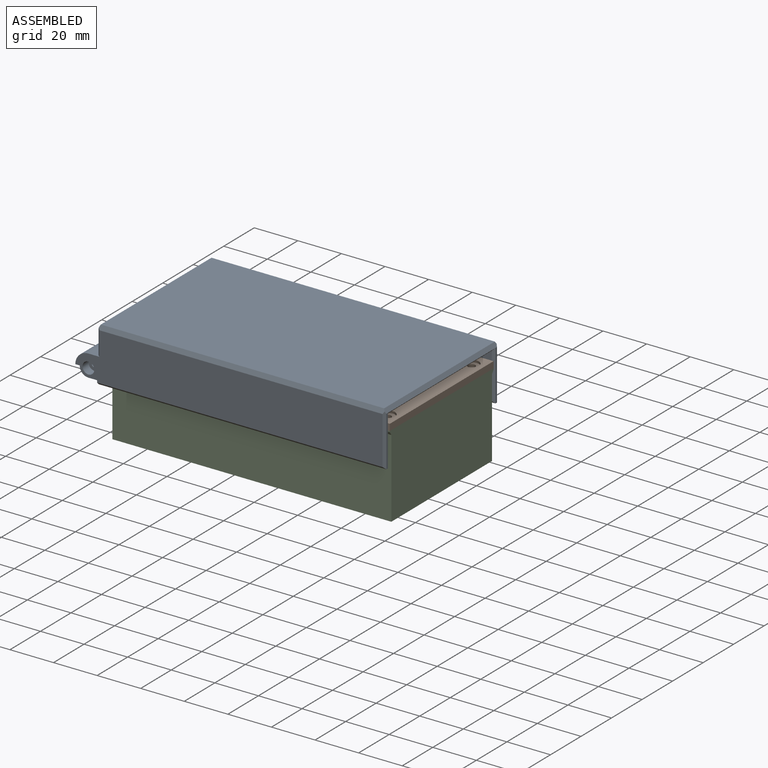
[diagram: assembled view]
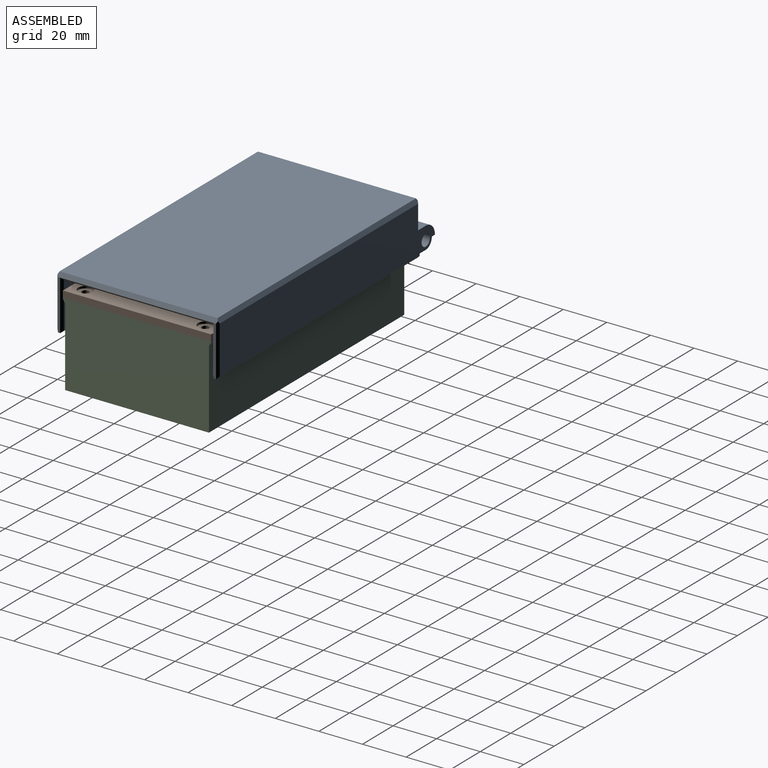
[diagram: assembled view, second angle]
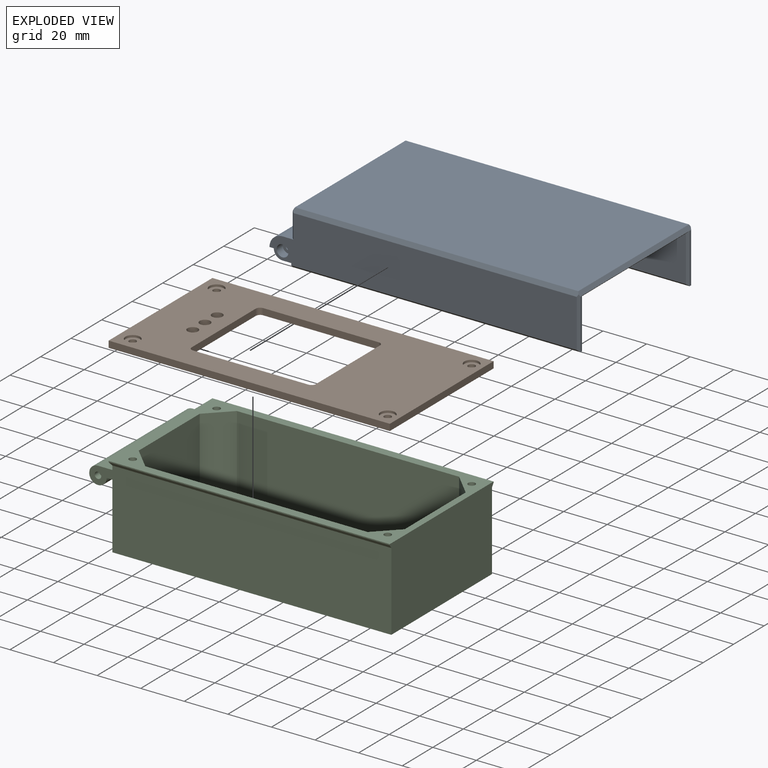
[diagram: exploded view]
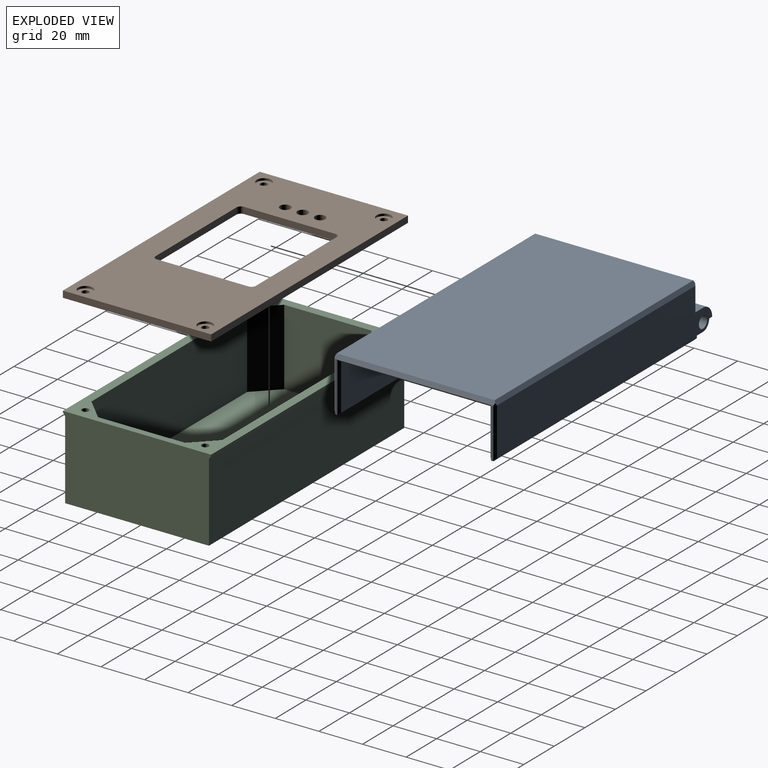
[diagram: exploded view, second angle]
ASSEMBLY  parts=3 mates=2
PART A: 64 faces, bbox 142x74.5x25 mm
  f0: plane 23x1mm, normal (1,0,0), area 23mm2, adj f2,f50,f56,f60
  f1: plane 6.25x2mm, normal (-1,0,0), area 12mm2, adj f13,f17,f35,f36,f51
  f2: plane 132x5.25mm, normal (0,0,1), area 140.5mm2, adj f0,f4,f37,f49,f53,f54
  f3: cylinder r=4mm len=6.25mm, axis (0,-1,0), area 39.3mm2, adj f8,f15,f37,f44
  f4: plane 6.25x2mm, normal (-1,0,0), area 12mm2, adj f2,f8,f15,f37,f49
  f5: cylinder r=4mm len=6.25mm, axis (0,-1,0), area 39.3mm2, adj f13,f35,f36,f44
  f6: cylinder r=1.35mm len=2.7mm, axis (0,-1,0), area 19.1mm2, adj f36,f41
  f7: cylinder r=1.35mm len=2.7mm, axis (0,-1,0), area 19.1mm2, adj f37,f39
  f8: plane 6.25x4mm, normal (0,0,1), area 25mm2, adj f3,f4,f15,f37
  f9: plane 128x68.5mm, normal (0,0,1), area 8562.1mm2, adj f10,f11,f12,f19,f20,f21,f23,f24
  f10: plane 128x21mm, normal (0,1,0), area 2676mm2, adj f9,f11,f23,f25,f26,f54,f56
  f11: plane 68.5x21mm, normal (1,0,0), area 880.5mm2, adj f9,f10,f12,f36,f37,f42,f53,f55
  f12: plane 128x21mm, normal (0,-1,0), area 2676mm2, adj f9,f11,f19,f20,f22,f57,f59
  f13: plane 141x22mm, normal (0,1,0), area 2928.9mm2, adj f1,f5,f35,f40,f44,f45,f46,f47
  f14: plane 72.5x11mm, normal (-1,0,0), area 797.5mm2, adj f46,f47,f48,f63
  f15: plane 141x22mm, normal (0,-1,0), area 2928.9mm2, adj f3,f4,f8,f38,f44,f45,f46,f48
  f16: plane 23x1mm, normal (1,0,0), area 23mm2, adj f17,f52,f59,f60
  f17: plane 132x5.25mm, normal (0,0,1), area 140.5mm2, adj f1,f16,f36,f51,f55,f57
  f18: plane 130x72.5mm, normal (0,0,-1), area 9425mm2, adj f60,f61,f62,f63
  f19: plane 6x4mm, normal (1,0,0), area 24mm2, adj f9,f12,f21,f22
  f20: plane 6x4mm, normal (-1,0,0), area 24mm2, adj f9,f12,f21,f22
  f21: plane 4x3mm, normal (0,-1,0), area 12mm2, adj f9,f19,f20,f22
  f22: plane 6x3mm, normal (0,0,1), area 18mm2, adj f12,f19,f20,f21
  f23: plane 6x4mm, normal (1,0,0), area 24mm2, adj f9,f10,f24,f26
  f24: plane 4x3mm, normal (0,1,0), area 12mm2, adj f9,f23,f25,f26
  f25: plane 6x4mm, normal (-1,0,0), area 24mm2, adj f9,f10,f24,f26
  f26: plane 6x3mm, normal (0,0,1), area 18mm2, adj f10,f23,f24,f25
  f27: cylinder r=5.2mm len=10.4mm, axis (0,0,-1), area 130.7mm2, adj f9,f28
  f28: plane 10.4x10.4mm, normal (0,0,1), area 34.7mm2, adj f27,f33
  f29: cylinder r=5.2mm len=10.4mm, axis (0,0,-1), area 130.7mm2, adj f9,f30
  f30: plane 10.4x10.4mm, normal (0,0,1), area 34.7mm2, adj f29,f31
  f31: cylinder r=4mm len=8mm, axis (0,0,1), area 50.3mm2, adj f30,f32
  f32: plane 8x8mm, normal (0,0,1), area 50.3mm2, adj f31
  f33: cylinder r=4mm len=8mm, axis (0,0,1), area 50.3mm2, adj f28,f34
  f34: plane 8x8mm, normal (0,0,1), area 50.3mm2, adj f33
  f35: plane 6.25x4mm, normal (0,0,1), area 25mm2, adj f1,f5,f13,f36
  f36: plane 11x10mm, normal (0,-1,0), area 80.9mm2, adj f1,f5,f6,f11,f17,f35,f42,f43
  f37: plane 11x10mm, normal (0,1,0), area 80.9mm2, adj f2,f3,f4,f7,f8,f11,f42,f43
  f38: cylinder r=2.7mm len=5.4mm, axis (0,-1,0), area 67.9mm2, adj f15,f39
  f39: plane 5.4x5.4mm, normal (0,-1,0), area 17.2mm2, adj f7,f38
  f40: cylinder r=2.7mm len=5.4mm, axis (0,1,0), area 67.9mm2, adj f13,f41
  f41: plane 5.4x5.4mm, normal (0,1,0), area 17.2mm2, adj f6,f40
  f42: plane 62x7mm, normal (0,0,1), area 434mm2, adj f11,f36,f37,f43
  f43: cylinder r=4mm len=62mm, axis (0,-1,0), area 389.6mm2, adj f36,f37,f42,f44
  f44: plane 74.5x2mm, normal (0,0,1), area 149mm2, adj f3,f5,f13,f15,f43,f45
  f45: cylinder r=6mm len=74.5mm, axis (0,-1,0), area 702.1mm2, adj f13,f15,f44,f46
  f46: plane 74.5x5mm, normal (0,0,-1), area 299mm2, adj f13,f14,f15,f45,f47,f48
  f47: plane 12x1mm, normal (-0.71,0.71,0), area 16.3mm2, adj f13,f14,f46,f62,f63
  f48: plane 12x1mm, normal (-0.71,-0.71,0), area 16.3mm2, adj f14,f15,f46,f61,f63
  f49: plane 132x1mm, normal (0,-0.71,0.71), area 186mm2, adj f2,f4,f15,f50
  f50: plane 24x1mm, normal (0.71,-0.71,0), area 32.5mm2, adj f0,f15,f49,f60,f61
  f51: plane 132x1mm, normal (0,0.71,0.71), area 186mm2, adj f1,f13,f17,f52
  f52: plane 24x1mm, normal (0.71,0.71,0), area 32.5mm2, adj f13,f16,f51,f60,f62
  f53: plane 4.25x1mm, normal (0.71,0,0.71), area 5.3mm2, adj f2,f11,f37,f54
  f54: plane 130x1mm, normal (0,0.71,0.71), area 182.4mm2, adj f2,f10,f53,f56
  f55: plane 4.25x1mm, normal (0.71,0,0.71), area 5.3mm2, adj f11,f17,f36,f57
  f56: plane 23x1mm, normal (0.71,0.71,0), area 31.1mm2, adj f0,f10,f54,f58
  f57: plane 130x1mm, normal (0,-0.71,0.71), area 182.4mm2, adj f12,f17,f55,f59
  f58: plane 70.5x1mm, normal (0.71,0,0.71), area 98.3mm2, adj f9,f56,f59,f60
  f59: plane 23x1mm, normal (0.71,-0.71,0), area 31.1mm2, adj f12,f16,f57,f58
  f60: plane 73.5x2mm, normal (0.89,0,-0.45), area 163.2mm2, adj f0,f16,f18,f50,f52,f58,f61,f62
  f61: plane 131x2mm, normal (0,-0.89,-0.45), area 291.8mm2, adj f15,f18,f48,f50,f60,f63
  f62: plane 131x2mm, normal (0,0.89,-0.45), area 291.8mm2, adj f13,f18,f47,f52,f60,f63
  f63: plane 73.5x2mm, normal (-0.89,0,-0.45), area 163.2mm2, adj f14,f18,f47,f48,f61,f62
PART B: 33 faces, bbox 129x68x3 mm
  f0: plane 129x68mm, normal (0,0,-1), area 5957mm2, adj f1,f2,f3,f4,f5,f6,f10,f11
  f1: plane 129x3mm, normal (0,1,0), area 387mm2, adj f0,f2,f10,f18
  f2: plane 68x3mm, normal (-1,0,0), area 204mm2, adj f0,f1,f3,f18
  f3: plane 129x3mm, normal (0,-1,0), area 387mm2, adj f0,f2,f10,f18
  f4: plane 42x3mm, normal (1,0,0), area 126mm2, adj f0,f18,f19,f22
  f5: plane 53x3mm, normal (0,-1,0), area 159mm2, adj f0,f18,f19,f20
  f6: plane 42x3mm, normal (-1,0,0), area 126mm2, adj f0,f18,f20,f21
  f7: cylinder r=1.62mm len=3.25mm, axis (0,0,-1), area 20.4mm2, adj f18,f28
  f8: cylinder r=1.62mm len=3.25mm, axis (0,0,-1), area 20.4mm2, adj f18,f30
  f9: cylinder r=1.62mm len=3.25mm, axis (0,0,-1), area 20.4mm2, adj f18,f32
  f10: plane 68x3mm, normal (1,0,0), area 204mm2, adj f0,f1,f3,f18
  f11: plane 53x3mm, normal (0,1,0), area 159mm2, adj f0,f18,f21,f22
  f12: cylinder r=4.05mm len=8.1mm, axis (0,0,-1), area 50.9mm2, adj f18,f24
  f13: cylinder r=4.05mm len=8.1mm, axis (0,0,-1), area 50.9mm2, adj f18,f23
  f14: cylinder r=2.43mm len=4.85mm, axis (0,0,-1), area 45.7mm2, adj f0,f18
  f15: cylinder r=2.43mm len=4.85mm, axis (0,0,-1), area 45.7mm2, adj f0,f18
  f16: cylinder r=2.43mm len=4.85mm, axis (0,0,-1), area 45.7mm2, adj f0,f18
  f17: cylinder r=1.62mm len=3.25mm, axis (0,0,-1), area 20.4mm2, adj f18,f26
  f18: plane 129x68mm, normal (0,0,1), area 5961.8mm2, adj f1,f2,f3,f4,f5,f6,f7,f8
  f19: cylinder r=2mm len=3mm, axis (0,0,1), area 9.4mm2, adj f0,f4,f5,f18
  f20: cylinder r=2mm len=3mm, axis (0,0,1), area 9.4mm2, adj f0,f5,f6,f18
  f21: cylinder r=2mm len=3mm, axis (0,0,1), area 9.4mm2, adj f0,f6,f11,f18
  f22: cylinder r=2mm len=3mm, axis (0,0,1), area 9.4mm2, adj f0,f4,f11,f18
  f23: plane 8.1x8.1mm, normal (0,0,1), area 51.5mm2, adj f13
  f24: plane 8.1x8.1mm, normal (0,0,1), area 51.5mm2, adj f12
  f25: cylinder r=3.35mm len=6.7mm, axis (0,0,-1), area 21mm2, adj f0,f26
  f26: plane 6.7x6.7mm, normal (0,0,-1), area 27mm2, adj f17,f25
  f27: cylinder r=3.35mm len=6.7mm, axis (0,0,-1), area 21mm2, adj f0,f28
  f28: plane 6.7x6.7mm, normal (0,0,-1), area 27mm2, adj f7,f27
  f29: cylinder r=3.35mm len=6.7mm, axis (0,0,-1), area 21mm2, adj f0,f30
  f30: plane 6.7x6.7mm, normal (0,0,-1), area 27mm2, adj f8,f29
  f31: cylinder r=3.35mm len=6.7mm, axis (0,0,-1), area 21mm2, adj f0,f32
  f32: plane 6.7x6.7mm, normal (0,0,-1), area 27mm2, adj f9,f31
PART C: 44 faces, bbox 140x68x38 mm
  f0: plane 66x36mm, normal (-1,0,0), area 2128mm2, adj f1,f2,f17,f26,f27,f28,f29,f34
  f1: plane 128x36mm, normal (0,1,0), area 4608mm2, adj f0,f13,f17,f33
  f2: plane 128x36mm, normal (0,-1,0), area 4608mm2, adj f0,f13,f17,f35
  f3: plane 40x35mm, normal (1,0,0), area 1400mm2, adj f4,f14,f16,f21
  f4: plane 35x10mm, normal (0.71,-0.71,0), area 495mm2, adj f3,f5,f16,f21
  f5: plane 102x35mm, normal (0,-1,0), area 3570mm2, adj f4,f6,f16,f21
  f6: plane 35x10mm, normal (-0.71,-0.71,0), area 495mm2, adj f5,f7,f16,f21
  f7: plane 40x35mm, normal (-1,0,0), area 1400mm2, adj f6,f8,f16,f21
  f8: plane 35x10mm, normal (-0.71,0.71,0), area 495mm2, adj f7,f9,f16,f21
  f9: plane 102x35mm, normal (0,1,0), area 3570mm2, adj f8,f14,f16,f21
  f10: cylinder r=1.62mm len=28mm, axis (0,0,-1), area 285.9mm2, adj f16,f41
  f11: cylinder r=1.62mm len=28mm, axis (0,0,-1), area 285.9mm2, adj f16,f42
  f12: cylinder r=1.62mm len=28mm, axis (0,0,-1), area 285.9mm2, adj f16,f43
  f13: plane 68x38mm, normal (1,0,0), area 2510.5mm2, adj f1,f2,f16,f17,f30,f31,f33,f35
  f14: plane 35x10mm, normal (0.71,0.71,0), area 495mm2, adj f3,f9,f16,f21
  f15: cylinder r=1.62mm len=28mm, axis (0,0,-1), area 285.9mm2, adj f16,f40
  f16: plane 129x68mm, normal (0,0,1), area 1618.8mm2, adj f3,f4,f5,f6,f7,f8,f9,f10
  f17: plane 128x66mm, normal (0,0,-1), area 8234.3mm2, adj f0,f1,f2,f13,f18,f19,f20
  f18: cylinder r=2.43mm len=4.85mm, axis (0,0,-1), area 15.2mm2, adj f17,f24
  f19: cylinder r=7.5mm len=15mm, axis (0,0,-1), area 47.1mm2, adj f17,f22
  f20: cylinder r=2.43mm len=4.85mm, axis (0,0,-1), area 15.2mm2, adj f17,f23
  f21: plane 122x60mm, normal (0,0,1), area 6762.8mm2, adj f3,f4,f5,f6,f7,f8,f9,f14
  f22: cone r=7.5mm half-angle=45deg, axis (0,0,1), area 151.1mm2, adj f19,f21
  f23: cone r=2.43mm half-angle=26.6deg, axis (0,0,1), area 41.1mm2, adj f20,f21
  f24: cone r=2.43mm half-angle=26.6deg, axis (0,0,1), area 41.1mm2, adj f18,f21
  f25: cylinder r=4mm len=62mm, axis (0,1,0), area 1168.7mm2, adj f26,f27,f28,f29
  f26: plane 62x8mm, normal (0,0,1), area 496mm2, adj f0,f25,f28,f29
  f27: plane 62x4mm, normal (0,0,-1), area 248mm2, adj f0,f25,f28,f29
  f28: plane 12x8mm, normal (0,-1,0), area 62.6mm2, adj f0,f25,f26,f27,f38
  f29: plane 12x8mm, normal (0,1,0), area 62.6mm2, adj f0,f25,f26,f27,f36
  f30: plane 129x0.5mm, normal (0,-1,0), area 64.5mm2, adj f13,f16,f32,f35
  f31: plane 129x0.5mm, normal (0,1,0), area 64.5mm2, adj f13,f16,f32,f33
  f32: plane 68x0.5mm, normal (-1,0,0), area 34mm2, adj f16,f30,f31,f34
  f33: plane 129x1.5mm, normal (0,0.83,-0.55), area 231.7mm2, adj f1,f13,f31,f34
  f34: plane 68x1.5mm, normal (-0.83,0,-0.55), area 120.8mm2, adj f0,f32,f33,f35
  f35: plane 129x1.5mm, normal (0,-0.83,-0.55), area 231.7mm2, adj f2,f13,f30,f34
  f36: cylinder r=1.5mm len=3mm, axis (0,1,0), area 28.3mm2, adj f29,f37
  f37: plane 3x3mm, normal (0,1,0), area 7.1mm2, adj f36
  f38: cylinder r=1.5mm len=3mm, axis (0,-1,0), area 28.3mm2, adj f28,f39
  f39: plane 3x3mm, normal (0,-1,0), area 7.1mm2, adj f38
  f40: plane 3.25x3.25mm, normal (0,0,1), area 8.3mm2, adj f15
  f41: plane 3.25x3.25mm, normal (0,0,1), area 8.3mm2, adj f10
  f42: plane 3.25x3.25mm, normal (0,0,1), area 8.3mm2, adj f11
  f43: plane 3.25x3.25mm, normal (0,0,1), area 8.3mm2, adj f12
PLACE A rot(axis=(1,0,0),180deg) t=(-71.55,-178.4,-53.24)mm
PLACE B rot(axis=(-1,0,0),180deg) t=(-78.55,-178.4,-60.24)mm
PLACE C t=(-76.72,-177.81,-101.24)mm fixed
MATE revolute C.f25 <-> A.f38  axis (0,1,0) through (-143.05,-209.4,-72.24)mm
MATE fastened C.f12 <-> B.f7  axis (0,0,1) through (-129.55,-205.9,-63.24)mm
